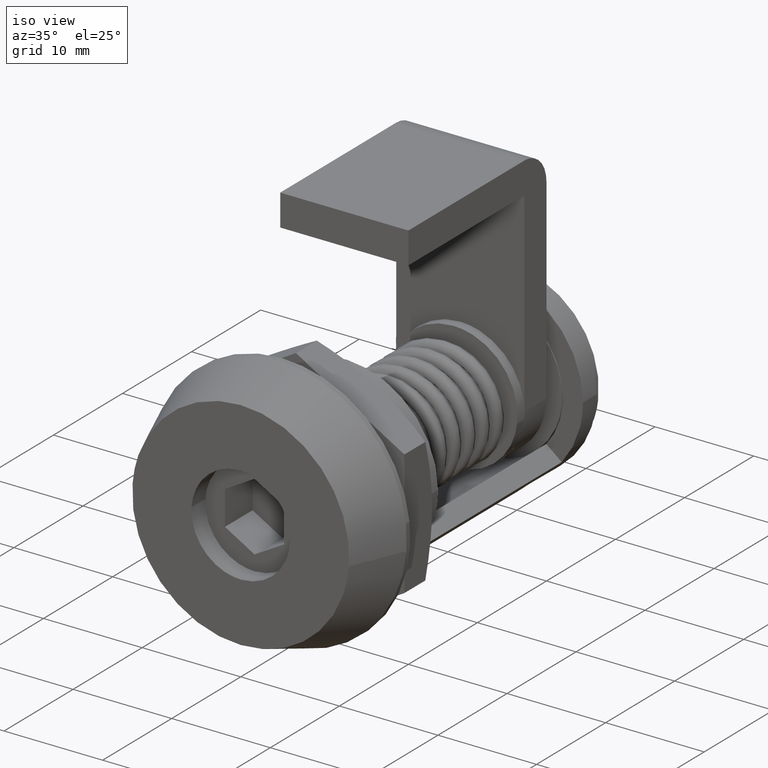
[diagram: clean part render]
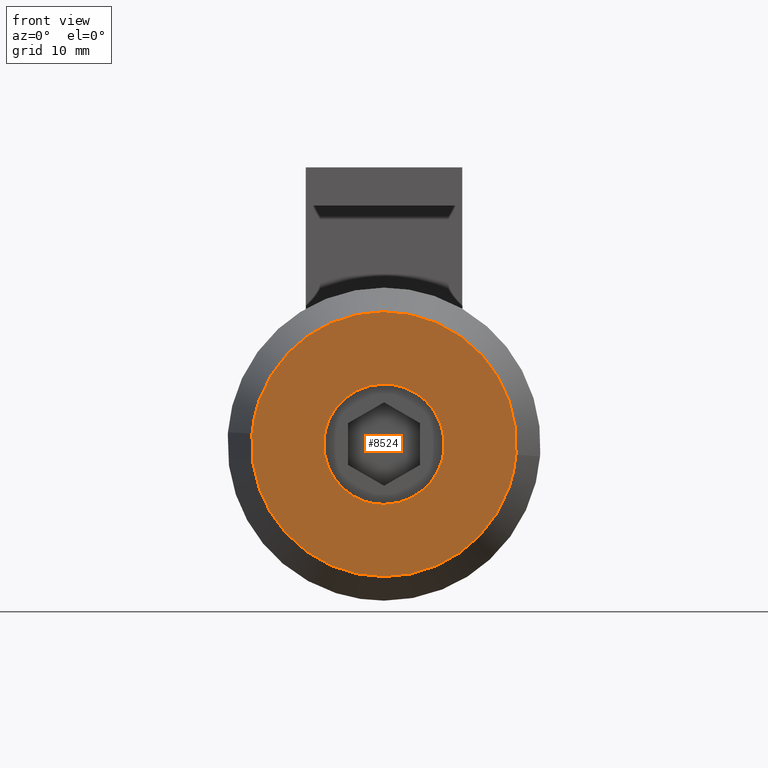
[diagram: tour spotlight — one face highlighted and labeled with its STEP entity id]
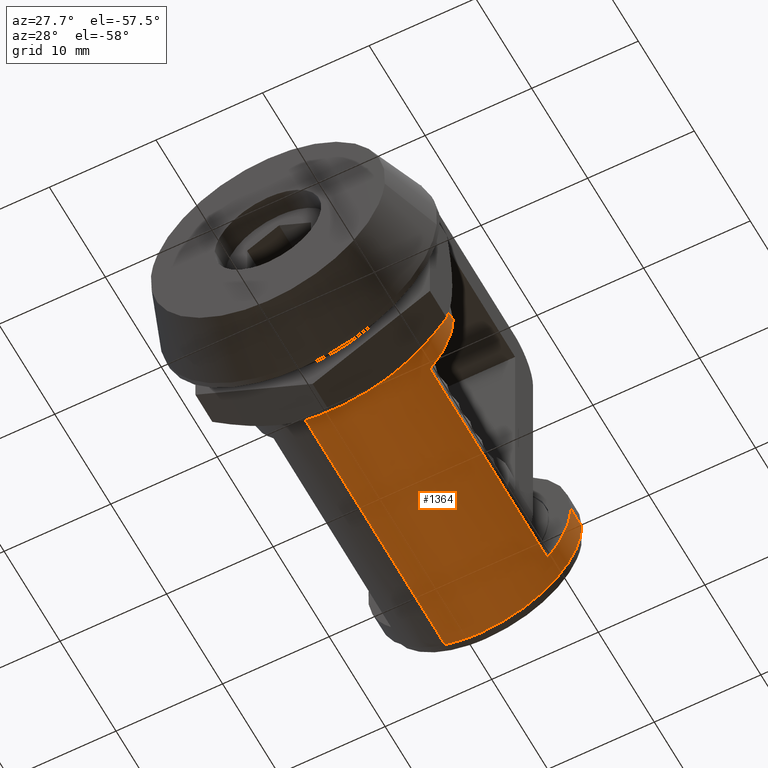
[diagram: tour spotlight — one face highlighted and labeled with its STEP entity id]
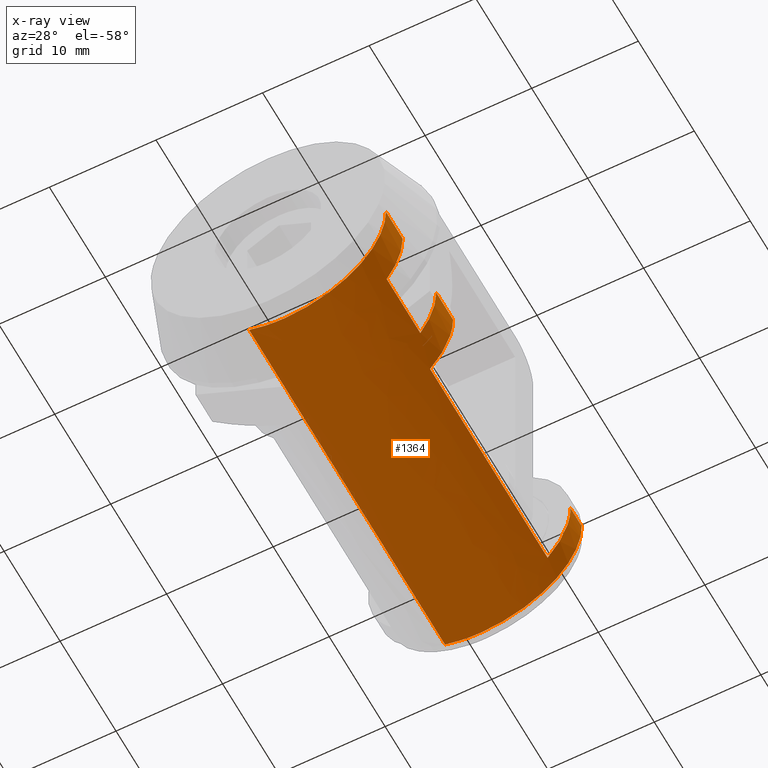
[diagram: x-ray of the same camera — body ghosted, this tour face saturated]
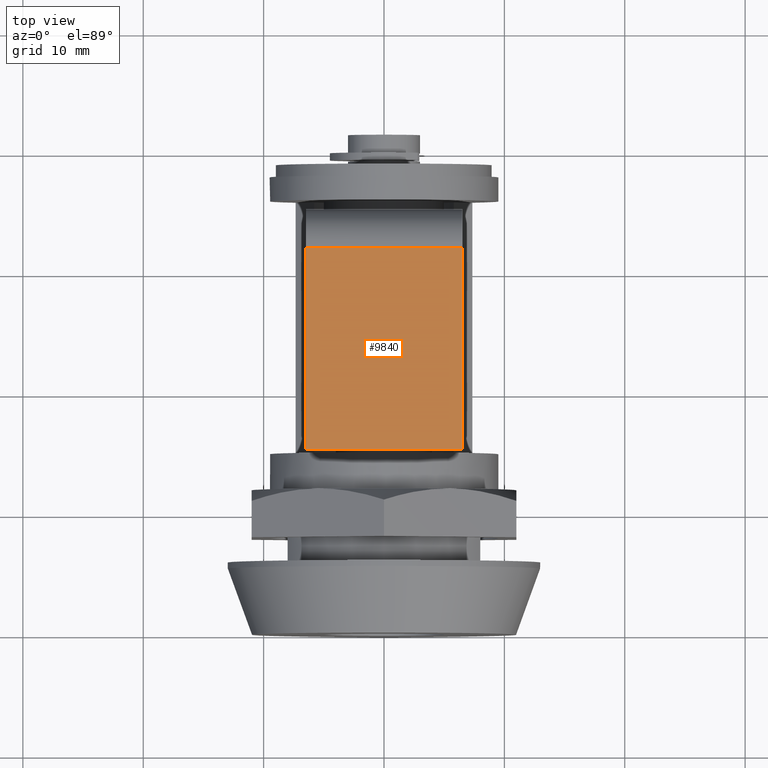
[diagram: tour spotlight — one face highlighted and labeled with its STEP entity id]
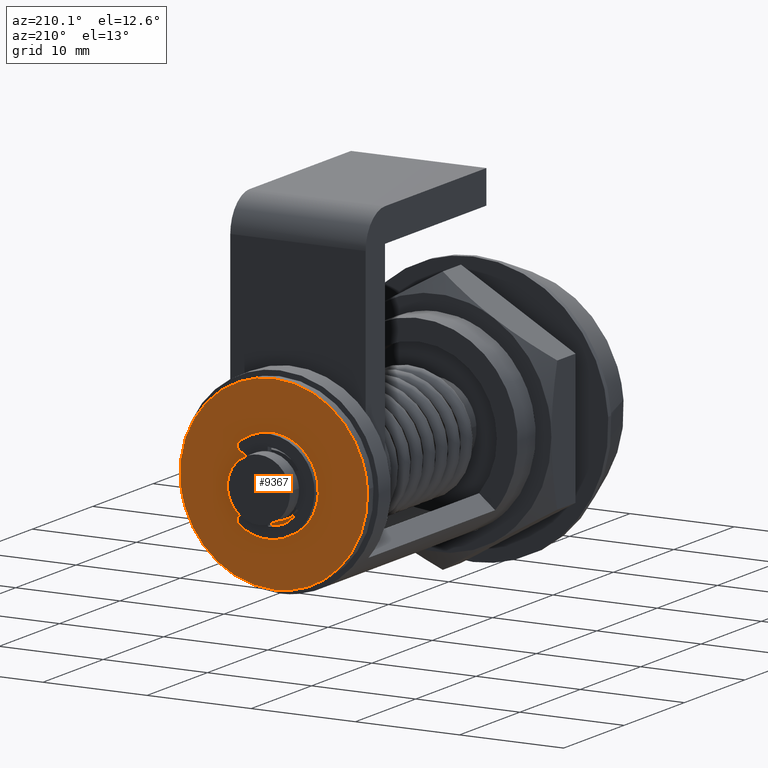
[diagram: tour spotlight — one face highlighted and labeled with its STEP entity id]
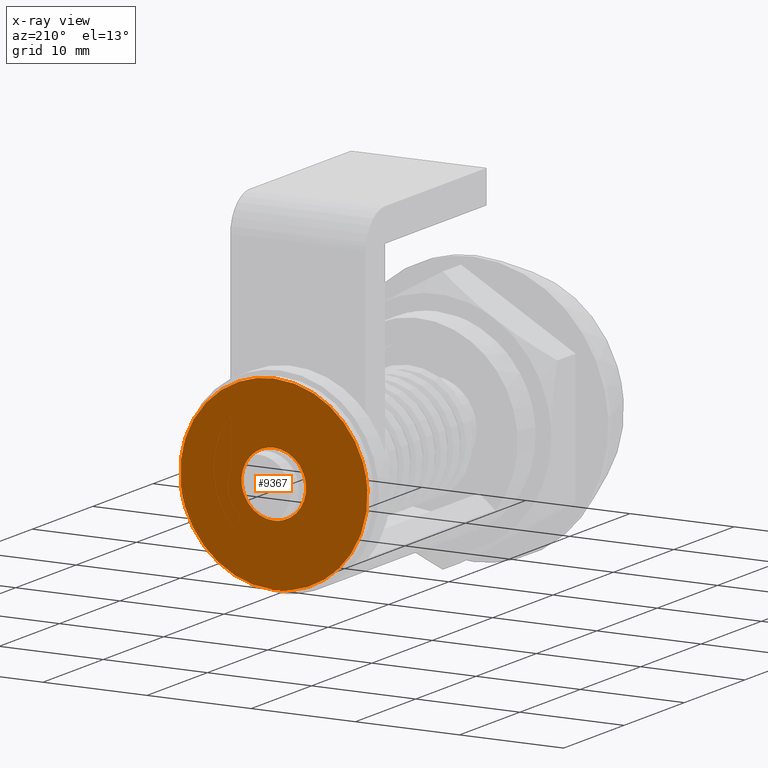
[diagram: x-ray of the same camera — body ghosted, this tour face saturated]
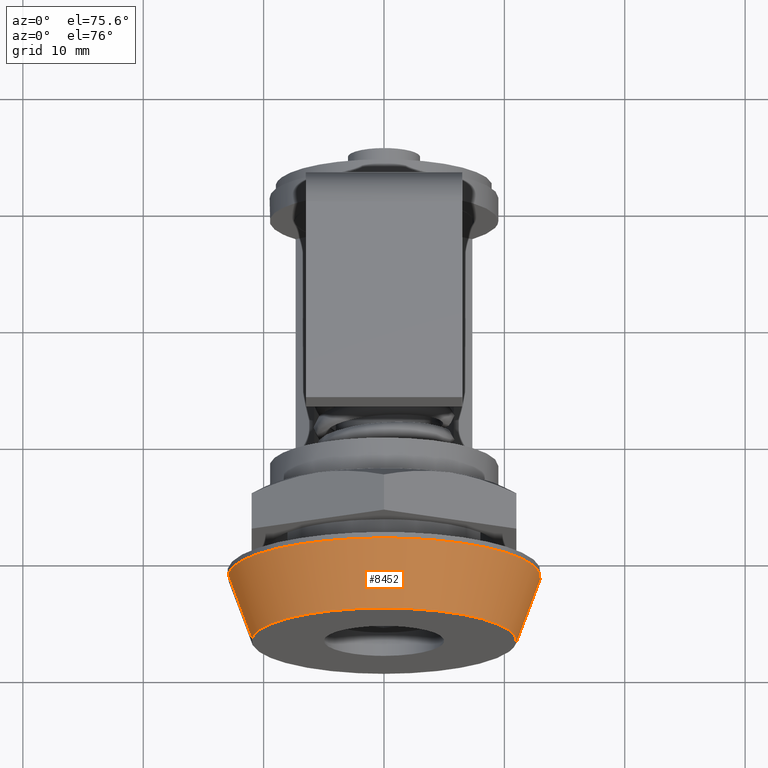
[diagram: tour spotlight — one face highlighted and labeled with its STEP entity id]
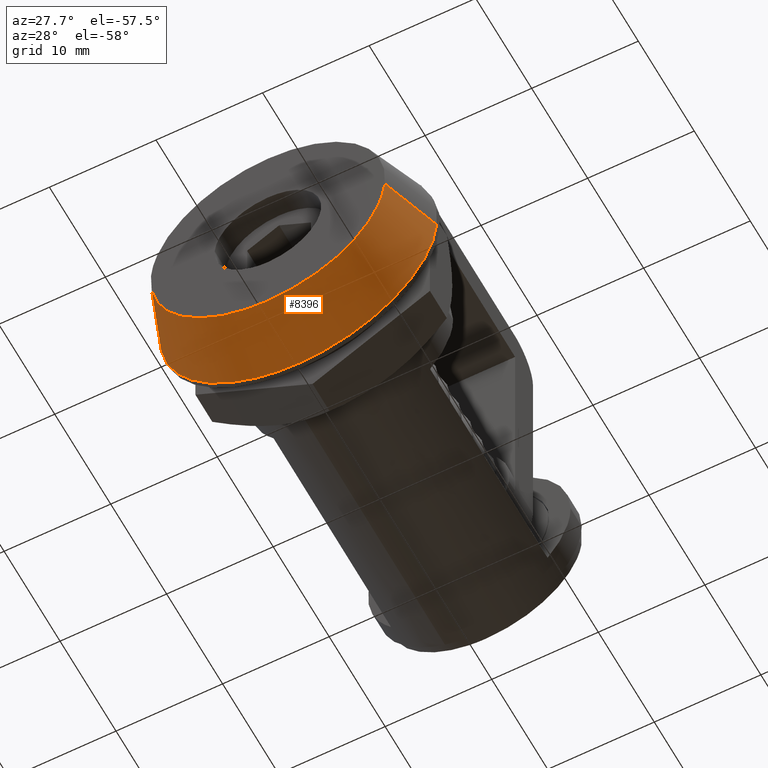
[diagram: tour spotlight — one face highlighted and labeled with its STEP entity id]
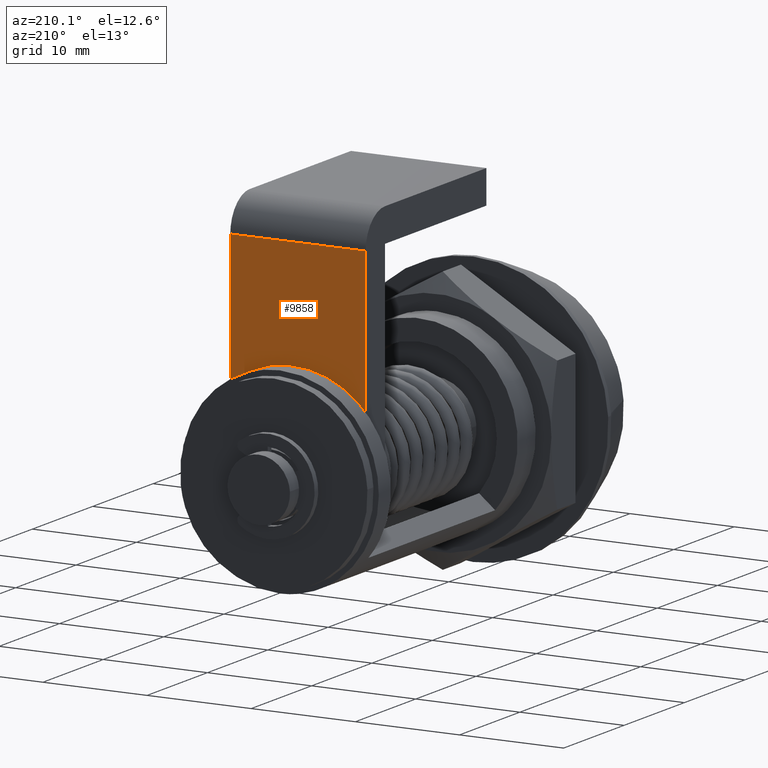
[diagram: tour spotlight — one face highlighted and labeled with its STEP entity id]
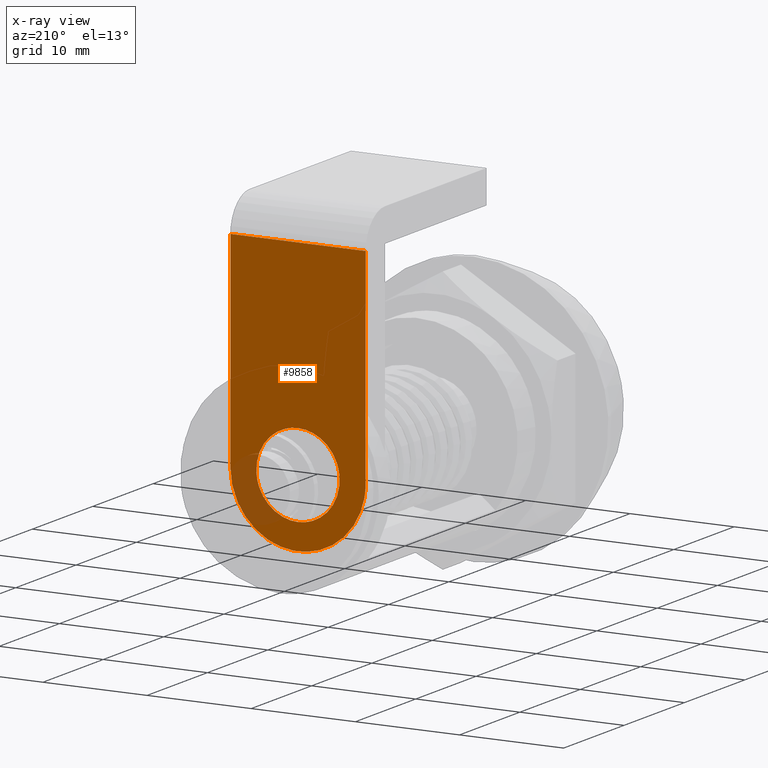
[diagram: x-ray of the same camera — body ghosted, this tour face saturated]
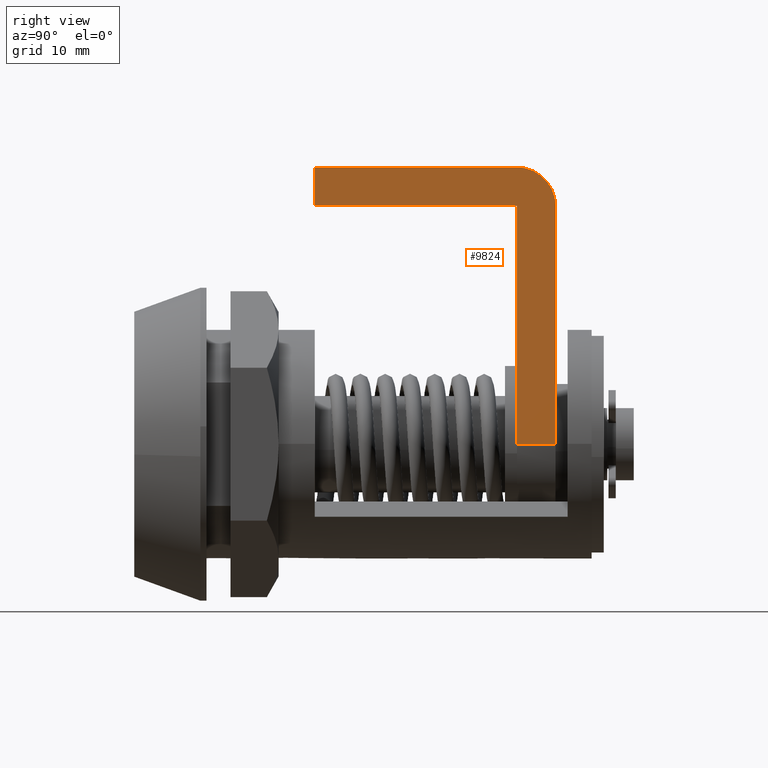
[diagram: tour spotlight — one face highlighted and labeled with its STEP entity id]
A machine part: a face-by-face anatomy tour. The part has 138 B-rep faces; the first image is the clean iso view, then the 8 largest visible faces are spotlighted one at a time (largest first), each with its STEP entity span.

Face 1 — front view, entity #8524. In plain terms, the highlighted face is a freeform B-spline surface patch.
Definition (entity closure, byte-faithful):
#8184=CARTESIAN_POINT('',(4.965047631814872,1.064786E-017,-0.590171173312899));
#8185=VERTEX_POINT('',#8184);
#8191=CARTESIAN_POINT('',(0.0,0.0,5.0));
#8192=VERTEX_POINT('',#8191);
#8193=CARTESIAN_POINT('',(4.965047631814872,1.064786E-017,-0.590171173312899));
#8194=CARTESIAN_POINT('',(5.000000000000001,0.0,-0.296120598288965));
#8195=CARTESIAN_POINT('',(5.0,0.0,-2.821493E-016));
#8196=CARTESIAN_POINT('',(5.000000000000001,0.0,5.000000000000001));
#8197=CARTESIAN_POINT('',(0.0,0.0,5.0));
#8205=(BOUNDED_CURVE()B_SPLINE_CURVE(2,(#8193,#8194,#8195,#8196,#8197),.UNSPECIFIED.,.F.,.U.)B_SPLINE_CURVE_WITH_KNOTS((3,2,3),(0.229562473513663,0.250000000000000,0.500000000000000),.UNSPECIFIED.)CURVE()GEOMETRIC_REPRESENTATION_ITEM()RATIONAL_B_SPLINE_CURVE((0.956026754184002,0.976055948331326,1.0,0.707106781186548,1.0))REPRESENTATION_ITEM(''));
#8206=EDGE_CURVE('',#8185,#8192,#8205,.T.);
#8208=CARTESIAN_POINT('',(-4.990674043895892,1.283695E-016,0.305241850969208));
#8209=VERTEX_POINT('',#8208);
#8210=CARTESIAN_POINT('',(0.0,0.0,5.0));
#8211=CARTESIAN_POINT('',(-4.703531933489114,0.0,4.999999999999999));
#8212=CARTESIAN_POINT('',(-4.990674043895892,1.283695E-016,0.305241850969208));
#8220=(BOUNDED_CURVE()B_SPLINE_CURVE(2,(#8210,#8211,#8212),.UNSPECIFIED.,.F.,.U.)B_SPLINE_CURVE_WITH_KNOTS((3,3),(0.500000000000000,0.739333020789672),.UNSPECIFIED.)CURVE()GEOMETRIC_REPRESENTATION_ITEM()RATIONAL_B_SPLINE_CURVE((1.0,0.719603924690265,0.976072167152107))REPRESENTATION_ITEM(''));
#8221=EDGE_CURVE('',#8192,#8209,#8220,.T.);
#8295=CARTESIAN_POINT('',(0.0,0.0,-5.0));
#8296=VERTEX_POINT('',#8295);
#8297=CARTESIAN_POINT('',(-4.990674043895892,1.283695E-016,0.305241850969208));
#8298=CARTESIAN_POINT('',(-5.000000000000001,0.0,0.152762967413802));
#8299=CARTESIAN_POINT('',(-5.0,0.0,-2.821493E-016));
#8300=CARTESIAN_POINT('',(-5.000000000000001,0.0,-5.000000000000001));
#8301=CARTESIAN_POINT('',(0.0,0.0,-5.0));
#8309=(BOUNDED_CURVE()B_SPLINE_CURVE(2,(#8297,#8298,#8299,#8300,#8301),.UNSPECIFIED.,.F.,.U.)B_SPLINE_CURVE_WITH_KNOTS((3,2,3),(0.739333020789672,0.750000000000000,1.0),.UNSPECIFIED.)CURVE()GEOMETRIC_REPRESENTATION_ITEM()RATIONAL_B_SPLINE_CURVE((0.976072167152108,0.987502856496283,1.0,0.707106781186548,1.0))REPRESENTATION_ITEM(''));
#8310=EDGE_CURVE('',#8209,#8296,#8309,.T.);
#8312=CARTESIAN_POINT('',(0.0,0.0,-5.0));
#8313=CARTESIAN_POINT('',(4.440872629704403,0.0,-5.000000000000001));
#8314=CARTESIAN_POINT('',(4.965047631814872,1.064786E-017,-0.590171173312899));
#8322=(BOUNDED_CURVE()B_SPLINE_CURVE(2,(#8312,#8313,#8314),.UNSPECIFIED.,.F.,.U.)B_SPLINE_CURVE_WITH_KNOTS((3,3),(0.0,0.229562473513663),.UNSPECIFIED.)CURVE()GEOMETRIC_REPRESENTATION_ITEM()RATIONAL_B_SPLINE_CURVE((1.0,0.731050832855222,0.956026754184002))REPRESENTATION_ITEM(''));
#8323=EDGE_CURVE('',#8296,#8185,#8322,.T.);
#8347=CARTESIAN_POINT('',(0.0,0.0,-11.0));
#8348=VERTEX_POINT('',#8347);
#8349=CARTESIAN_POINT('',(10.966090671064149,4.024156E-012,-0.863050053028149));
#8350=VERTEX_POINT('',#8349);
#8351=CARTESIAN_POINT('',(0.0,0.0,-11.0));
#8352=CARTESIAN_POINT('',(10.168295408199839,0.0,-11.0));
#8353=CARTESIAN_POINT('',(10.966090671064151,4.024156E-012,-0.863050053028149));
#8361=(BOUNDED_CURVE()B_SPLINE_CURVE(2,(#8351,#8352,#8353),.UNSPECIFIED.,.F.,.U.)B_SPLINE_CURVE_WITH_KNOTS((3,3),(0.0,0.236331300632087),.UNSPECIFIED.)CURVE()GEOMETRIC_REPRESENTATION_ITEM()RATIONAL_B_SPLINE_CURVE((1.0,0.723120658605993,0.969723356170397))REPRESENTATION_ITEM(''));
#8362=EDGE_CURVE('',#8348,#8350,#8361,.T.);
#8364=CARTESIAN_POINT('',(-10.966090671064149,4.024156E-012,0.863050053028146));
#8365=VERTEX_POINT('',#8364);
#8366=CARTESIAN_POINT('',(-10.966090671064157,4.024156E-012,0.863050053028146));
#8367=CARTESIAN_POINT('',(-10.999999999999996,0.0,0.432191177106200));
#8368=CARTESIAN_POINT('',(-11.0,0.0,-2.821493E-016));
#8369=CARTESIAN_POINT('',(-11.0,0.0,-11.0));
#8370=CARTESIAN_POINT('',(0.0,0.0,-11.0));
#8378=(BOUNDED_CURVE()B_SPLINE_CURVE(2,(#8366,#8367,#8368,#8369,#8370),.UNSPECIFIED.,.F.,.U.)B_SPLINE_CURVE_WITH_KNOTS((3,2,3),(0.736331300632087,0.750000000000000,1.0),.UNSPECIFIED.)CURVE()GEOMETRIC_REPRESENTATION_ITEM()RATIONAL_B_SPLINE_CURVE((0.969723356170398,0.983986122580555,1.0,0.707106781186548,1.0))REPRESENTATION_ITEM(''));
#8379=EDGE_CURVE('',#8365,#8348,#8378,.T.);
#8415=CARTESIAN_POINT('',(0.0,0.0,11.0));
#8416=VERTEX_POINT('',#8415);
#8417=CARTESIAN_POINT('',(10.966090671064160,4.024156E-012,-0.863050053028149));
#8418=CARTESIAN_POINT('',(10.999999999999998,0.0,-0.432191177106203));
#8419=CARTESIAN_POINT('',(11.0,0.0,-2.821493E-016));
#8420=CARTESIAN_POINT('',(11.0,0.0,11.0));
#8421=CARTESIAN_POINT('',(0.0,0.0,11.0));
#8429=(BOUNDED_CURVE()B_SPLINE_CURVE(2,(#8417,#8418,#8419,#8420,#8421),.UNSPECIFIED.,.F.,.U.)B_SPLINE_CURVE_WITH_KNOTS((3,2,3),(0.236331300632087,0.250000000000000,0.500000000000000),.UNSPECIFIED.)CURVE()GEOMETRIC_REPRESENTATION_ITEM()RATIONAL_B_SPLINE_CURVE((0.969723356170397,0.983986122580555,1.0,0.707106781186548,1.0))REPRESENTATION_ITEM(''));
#8430=EDGE_CURVE('',#8350,#8416,#8429,.T.);
#8437=CARTESIAN_POINT('',(0.0,0.0,11.0));
#8438=CARTESIAN_POINT('',(-10.168295408199802,0.0,11.0));
#8439=CARTESIAN_POINT('',(-10.966090671064153,4.024156E-012,0.863050053028146));
#8447=(BOUNDED_CURVE()B_SPLINE_CURVE(2,(#8437,#8438,#8439),.UNSPECIFIED.,.F.,.U.)B_SPLINE_CURVE_WITH_KNOTS((3,3),(0.500000000000000,0.736331300632087),.UNSPECIFIED.)CURVE()GEOMETRIC_REPRESENTATION_ITEM()RATIONAL_B_SPLINE_CURVE((1.0,0.723120658605994,0.969723356170396))REPRESENTATION_ITEM(''));
#8448=EDGE_CURVE('',#8416,#8365,#8447,.T.);
#8507=CARTESIAN_POINT('',(-12.095542279995369,0.0,-12.098899957359730));
#8508=CARTESIAN_POINT('',(-12.095542279995369,0.0,12.098900547445711));
#8509=CARTESIAN_POINT('',(12.095542870081360,0.0,-12.098899957359730));
#8510=CARTESIAN_POINT('',(12.095542870081360,0.0,12.098900547445711));
#8511=B_SPLINE_SURFACE_WITH_KNOTS('',1,1,((#8507,#8509),(#8508,#8510)),.UNSPECIFIED.,.F.,.F.,.U.,(2,2),(2,2),(0.0,24.197800504805439),(0.0,24.191085150076731),.UNSPECIFIED.);
#8512=ORIENTED_EDGE('',*,*,#8362,.T.);
#8513=ORIENTED_EDGE('',*,*,#8430,.T.);
#8514=ORIENTED_EDGE('',*,*,#8448,.T.);
#8515=ORIENTED_EDGE('',*,*,#8379,.T.);
#8516=EDGE_LOOP('',(#8512,#8513,#8514,#8515));
#8517=FACE_OUTER_BOUND('',#8516,.T.);
#8518=ORIENTED_EDGE('',*,*,#8221,.F.);
#8519=ORIENTED_EDGE('',*,*,#8206,.F.);
#8520=ORIENTED_EDGE('',*,*,#8323,.F.);
#8521=ORIENTED_EDGE('',*,*,#8310,.F.);
#8522=EDGE_LOOP('',(#8518,#8519,#8520,#8521));
#8523=FACE_BOUND('',#8522,.T.);
#8524=ADVANCED_FACE('',(#8517,#8523),#8511,.F.);

Face 2 — auxiliary view, entity #1364. An x-ray twin of the same camera follows (body ghosted, this face saturated) — the face is partly hidden behind the body. In plain terms, the highlighted face is a freeform B-spline surface patch.
Definition (entity closure, byte-faithful):
#567=CARTESIAN_POINT('',(-3.335122581036567,3.0,-8.895333460273189));
#568=VERTEX_POINT('',#567);
#584=CARTESIAN_POINT('',(0.0,3.0,-9.500000000000000));
#585=VERTEX_POINT('',#584);
#586=CARTESIAN_POINT('',(-3.335122581036567,3.000000000000000,-8.895333460273189));
#587=CARTESIAN_POINT('',(-1.722375111507071,3.0,-9.499999999999998));
#588=CARTESIAN_POINT('',(0.0,3.0,-9.500000000000000));
#596=(BOUNDED_CURVE()B_SPLINE_CURVE(2,(#586,#587,#588),.UNSPECIFIED.,.F.,.U.)B_SPLINE_CURVE_WITH_KNOTS((3,3),(0.940377376343434,1.0),.UNSPECIFIED.)CURVE()GEOMETRIC_REPRESENTATION_ITEM()RATIONAL_B_SPLINE_CURVE((0.893613697396860,0.930147751372501,1.0))REPRESENTATION_ITEM(''));
#597=EDGE_CURVE('',#568,#585,#596,.T.);
#599=CARTESIAN_POINT('',(9.499972911463162,3.0,0.022686589112294));
#600=VERTEX_POINT('',#599);
#601=CARTESIAN_POINT('',(0.0,3.0,-9.500000000000000));
#602=CARTESIAN_POINT('',(9.500000000000000,3.0,-9.500000000000000));
#603=CARTESIAN_POINT('',(9.500000000000000,3.0,-2.821493E-016));
#604=CARTESIAN_POINT('',(9.500000000000000,3.000000000000000,0.011343310728451));
#605=CARTESIAN_POINT('',(9.499972911463162,3.000000000000000,0.022686589112294));
#613=(BOUNDED_CURVE()B_SPLINE_CURVE(2,(#601,#602,#603,#604,#605),.UNSPECIFIED.,.F.,.U.)B_SPLINE_CURVE_WITH_KNOTS((3,2,3),(0.0,0.250000000000000,0.250421945624700),.UNSPECIFIED.)CURVE()GEOMETRIC_REPRESENTATION_ITEM()RATIONAL_B_SPLINE_CURVE((1.0,0.707106781186548,1.0,0.999505659951269,0.999012988579503))REPRESENTATION_ITEM(''));
#614=EDGE_CURVE('',#585,#600,#613,.T.);
#1210=CARTESIAN_POINT('',(-3.335124496469923,38.875000000000014,-8.895332742120790));
#1211=CARTESIAN_POINT('',(-1.711397609098610,38.875000000000007,-9.504116187849188));
#1212=CARTESIAN_POINT('',(0.022698444063289,38.875000000000007,-9.499972883152720));
#1213=CARTESIAN_POINT('',(9.522671327216010,38.875000000000007,-9.477274439089433));
#1214=CARTESIAN_POINT('',(9.499972883152720,38.875000000000007,0.022698444063288));
#1215=CARTESIAN_POINT('',(-3.335124496469923,2.103125000000000,-8.895332742120790));
#1216=CARTESIAN_POINT('',(-1.711397609098610,2.103125000000000,-9.504116187849188));
#1217=CARTESIAN_POINT('',(0.022698444063289,2.103124999999999,-9.499972883152720));
#1218=CARTESIAN_POINT('',(9.522671327216010,2.103124999999999,-9.477274439089433));
#1219=CARTESIAN_POINT('',(9.499972883152720,2.103124999999999,0.022698444063288));
#1227=(BOUNDED_SURFACE()B_SPLINE_SURFACE(2,1,((#1210,#1215),(#1211,#1216),(#1212,#1217),(#1213,#1218),(#1214,#1219)),.UNSPECIFIED.,.F.,.F.,.U.)B_SPLINE_SURFACE_WITH_KNOTS((3,2,3),(2,2),(0.0,3.777627688842630,19.517743059020230),(0.0,36.771875000000023),.UNSPECIFIED.)GEOMETRIC_REPRESENTATION_ITEM()RATIONAL_B_SPLINE_SURFACE(((0.893152553776852,0.893152553776852),(0.929705627484771,0.929705627484771),(1.0,1.0),(0.707106781186548,0.707106781186548),(1.0,1.0)))REPRESENTATION_ITEM('')SURFACE());
#1228=CARTESIAN_POINT('',(-3.335122557695712,38.0,-8.895333469024356));
#1229=VERTEX_POINT('',#1228);
#1230=CARTESIAN_POINT('',(0.0,38.0,-9.500000000000000));
#1231=VERTEX_POINT('',#1230);
#1232=CARTESIAN_POINT('',(-3.335122557695712,38.0,-8.895333469024356));
#1233=CARTESIAN_POINT('',(-1.722375098633648,38.0,-9.499999999999998));
#1234=CARTESIAN_POINT('',(0.0,38.0,-9.500000000000000));
#1242=(BOUNDED_CURVE()B_SPLINE_CURVE(2,(#1232,#1233,#1234),.UNSPECIFIED.,.F.,.U.)B_SPLINE_CURVE_WITH_KNOTS((3,3),(0.940377376757939,1.0),.UNSPECIFIED.)CURVE()GEOMETRIC_REPRESENTATION_ITEM()RATIONAL_B_SPLINE_CURVE((0.893613697904840,0.930147751858124,1.0))REPRESENTATION_ITEM(''));
#1243=EDGE_CURVE('',#1229,#1231,#1242,.T.);
#1244=ORIENTED_EDGE('',*,*,#1243,.T.);
#1245=CARTESIAN_POINT('',(9.499972911471502,38.0,0.022686585617442));
#1246=VERTEX_POINT('',#1245);
#1247=CARTESIAN_POINT('',(0.0,38.0,-9.500000000000000));
#1248=CARTESIAN_POINT('',(9.500000000000000,38.0,-9.500000000000000));
#1249=CARTESIAN_POINT('',(9.500000000000000,38.0,-2.821493E-016));
#1250=CARTESIAN_POINT('',(9.500000000000000,38.000000000000007,0.011343308981017));
#1251=CARTESIAN_POINT('',(9.499972911471502,37.999999999999993,0.022686585617442));
#1259=(BOUNDED_CURVE()B_SPLINE_CURVE(2,(#1247,#1248,#1249,#1250,#1251),.UNSPECIFIED.,.F.,.U.)B_SPLINE_CURVE_WITH_KNOTS((3,2,3),(0.0,0.250000000000000,0.250421945559732),.UNSPECIFIED.)CURVE()GEOMETRIC_REPRESENTATION_ITEM()RATIONAL_B_SPLINE_CURVE((1.0,0.707106781186548,1.0,0.999505660027384,0.999012988731220))REPRESENTATION_ITEM(''));
#1260=EDGE_CURVE('',#1231,#1246,#1259,.T.);
#1261=ORIENTED_EDGE('',*,*,#1260,.T.);
#1262=CARTESIAN_POINT('',(9.499972899413333,35.999999999999993,0.022691636473553));
#1263=VERTEX_POINT('',#1262);
#1264=CARTESIAN_POINT('',(9.499972911471502,38.0,0.022686585617442));
#1265=CARTESIAN_POINT('',(9.499972899413333,35.999999999999993,0.022691636473553));
#1266=QUASI_UNIFORM_CURVE('',1,(#1264,#1265),.UNSPECIFIED.,.F.,.U.);
#1267=EDGE_CURVE('',#1246,#1263,#1266,.T.);
#1268=ORIENTED_EDGE('',*,*,#1267,.T.);
#1269=CARTESIAN_POINT('',(7.342762986025960,36.0,-6.027755115384750));
#1270=VERTEX_POINT('',#1269);
#1271=CARTESIAN_POINT('',(7.342762986025965,36.0,-6.027755115384753));
#1272=CARTESIAN_POINT('',(9.508124457400749,35.999999999999993,-3.390000966614460));
#1273=CARTESIAN_POINT('',(9.499972899413333,35.999999999999986,0.022691636473553));
#1281=(BOUNDED_CURVE()B_SPLINE_CURVE(2,(#1271,#1272,#1273),.UNSPECIFIED.,.F.,.U.)B_SPLINE_CURVE_WITH_KNOTS((3,3),(0.0,0.153384382428661),.UNSPECIFIED.)CURVE()GEOMETRIC_REPRESENTATION_ITEM()RATIONAL_B_SPLINE_CURVE((1.0,0.875681553523498,0.865774155870729))REPRESENTATION_ITEM(''));
#1282=EDGE_CURVE('',#1270,#1263,#1281,.T.);
#1283=ORIENTED_EDGE('',*,*,#1282,.F.);
#1284=CARTESIAN_POINT('',(7.342762986025960,15.0,-6.027755115384750));
#1285=VERTEX_POINT('',#1284);
#1286=CARTESIAN_POINT('',(7.342762986025960,36.0,-6.027755115384750));
#1287=CARTESIAN_POINT('',(7.342762986025960,15.0,-6.027755115384750));
#1288=QUASI_UNIFORM_CURVE('',1,(#1286,#1287),.UNSPECIFIED.,.F.,.U.);
#1289=EDGE_CURVE('',#1270,#1285,#1288,.T.);
#1290=ORIENTED_EDGE('',*,*,#1289,.T.);
#1291=CARTESIAN_POINT('',(9.499972887300419,14.999999999999989,0.022696707996243));
#1292=VERTEX_POINT('',#1291);
#1293=CARTESIAN_POINT('',(7.342762986025965,15.0,-6.027755115384753));
#1294=CARTESIAN_POINT('',(9.508126273977986,14.999999999999996,-3.389998753734901));
#1295=CARTESIAN_POINT('',(9.499972887300419,14.999999999999980,0.022696707996243));
#1303=(BOUNDED_CURVE()B_SPLINE_CURVE(2,(#1293,#1294,#1295),.UNSPECIFIED.,.F.,.U.)B_SPLINE_CURVE_WITH_KNOTS((3,3),(0.0,0.153384495109679),.UNSPECIFIED.)CURVE()GEOMETRIC_REPRESENTATION_ITEM()RATIONAL_B_SPLINE_CURVE((1.0,0.875681462195236,0.865774141314215))REPRESENTATION_ITEM(''));
#1304=EDGE_CURVE('',#1285,#1292,#1303,.T.);
#1305=ORIENTED_EDGE('',*,*,#1304,.T.);
#1306=CARTESIAN_POINT('',(9.499972883010614,12.0,0.022698503533865));
#1307=VERTEX_POINT('',#1306);
#1308=CARTESIAN_POINT('',(9.499972887300419,14.999999999999989,0.022696707996243));
#1309=CARTESIAN_POINT('',(9.499972883010614,12.0,0.022698503533865));
#1310=QUASI_UNIFORM_CURVE('',1,(#1308,#1309),.UNSPECIFIED.,.F.,.U.);
#1311=EDGE_CURVE('',#1292,#1307,#1310,.T.);
#1312=ORIENTED_EDGE('',*,*,#1311,.T.);
#1313=CARTESIAN_POINT('',(8.0,12.0,-5.123475382979660));
#1314=VERTEX_POINT('',#1313);
#1315=CARTESIAN_POINT('',(8.0,12.0,-5.123475382979660));
#1316=CARTESIAN_POINT('',(9.506647793414169,12.000000000000002,-2.770935076578645));
#1317=CARTESIAN_POINT('',(9.499972883010614,12.000000000000002,0.022698503533865));
#1325=(BOUNDED_CURVE()B_SPLINE_CURVE(2,(#1315,#1316,#1317),.UNSPECIFIED.,.F.,.U.)B_SPLINE_CURVE_WITH_KNOTS((3,3),(0.0,0.502040275346693),.UNSPECIFIED.)CURVE()GEOMETRIC_REPRESENTATION_ITEM()RATIONAL_B_SPLINE_CURVE((1.0,0.920730482839999,0.921053946123211))REPRESENTATION_ITEM(''));
#1326=EDGE_CURVE('',#1314,#1307,#1325,.T.);
#1327=ORIENTED_EDGE('',*,*,#1326,.F.);
#1328=CARTESIAN_POINT('',(8.000000000000091,6.0,-5.123475382979640));
#1329=VERTEX_POINT('',#1328);
#1330=CARTESIAN_POINT('',(8.000000000000091,6.0,-5.123475382979640));
#1331=CARTESIAN_POINT('',(8.0,12.0,-5.123475382979660));
#1332=QUASI_UNIFORM_CURVE('',1,(#1330,#1331),.UNSPECIFIED.,.F.,.U.);
#1333=EDGE_CURVE('',#1329,#1314,#1332,.T.);
#1334=ORIENTED_EDGE('',*,*,#1333,.F.);
#1335=CARTESIAN_POINT('',(9.499972883060018,6.000000000000003,0.022698482862789));
#1336=VERTEX_POINT('',#1335);
#1337=CARTESIAN_POINT('',(9.499972883060018,6.000000000000003,0.022698482862789));
#1338=CARTESIAN_POINT('',(9.506647781301938,6.0,-2.770935095491211));
#1339=CARTESIAN_POINT('',(8.000000000000098,6.0,-5.123475382979647));
#1347=(BOUNDED_CURVE()B_SPLINE_CURVE(2,(#1337,#1338,#1339),.UNSPECIFIED.,.F.,.U.)B_SPLINE_CURVE_WITH_KNOTS((3,3),(0.497959728369384,1.0),.UNSPECIFIED.)CURVE()GEOMETRIC_REPRESENTATION_ITEM()RATIONAL_B_SPLINE_CURVE((0.921053946118424,0.920730483426750,1.0))REPRESENTATION_ITEM(''));
#1348=EDGE_CURVE('',#1336,#1329,#1347,.T.);
#1349=ORIENTED_EDGE('',*,*,#1348,.F.);
#1350=CARTESIAN_POINT('',(9.499972883060018,6.000000000000003,0.022698482862789));
#1351=CARTESIAN_POINT('',(9.499972911463162,3.0,0.022686589112294));
#1352=QUASI_UNIFORM_CURVE('',1,(#1350,#1351),.UNSPECIFIED.,.F.,.U.);
#1353=EDGE_CURVE('',#1336,#600,#1352,.T.);
#1354=ORIENTED_EDGE('',*,*,#1353,.T.);
#1355=ORIENTED_EDGE('',*,*,#614,.F.);
#1356=ORIENTED_EDGE('',*,*,#597,.F.);
#1357=CARTESIAN_POINT('',(-3.335122557695712,38.0,-8.895333469024356));
#1358=CARTESIAN_POINT('',(-3.335122581036567,3.0,-8.895333460273189));
#1359=QUASI_UNIFORM_CURVE('',1,(#1357,#1358),.UNSPECIFIED.,.F.,.U.);
#1360=EDGE_CURVE('',#1229,#568,#1359,.T.);
#1361=ORIENTED_EDGE('',*,*,#1360,.F.);
#1362=EDGE_LOOP('',(#1244,#1261,#1268,#1283,#1290,#1305,#1312,#1327,#1334,#1349,#1354,#1355,#1356,#1361));
#1363=FACE_OUTER_BOUND('',#1362,.T.);
#1364=ADVANCED_FACE('',(#1363),#1227,.T.);

Face 3 — top view, entity #9840. In plain terms, the highlighted face is a freeform B-spline surface patch.
Definition (entity closure, byte-faithful):
#9629=CARTESIAN_POINT('',(6.500000000000000,31.800000000000001,23.0));
#9630=VERTEX_POINT('',#9629);
#9651=CARTESIAN_POINT('',(-6.500000000000000,31.800000000000001,23.0));
#9652=VERTEX_POINT('',#9651);
#9666=CARTESIAN_POINT('',(6.500000000000000,31.800000000000001,23.0));
#9667=CARTESIAN_POINT('',(-6.500000000000000,31.800000000000001,23.0));
#9668=QUASI_UNIFORM_CURVE('',1,(#9666,#9667),.UNSPECIFIED.,.F.,.U.);
#9669=EDGE_CURVE('',#9630,#9652,#9668,.T.);
#9748=CARTESIAN_POINT('',(-6.500000000000000,15.0,23.0));
#9749=VERTEX_POINT('',#9748);
#9750=CARTESIAN_POINT('',(-6.500000000000000,31.800000000000001,23.0));
#9751=CARTESIAN_POINT('',(-6.500000000000000,15.0,23.0));
#9752=QUASI_UNIFORM_CURVE('',1,(#9750,#9751),.UNSPECIFIED.,.F.,.U.);
#9753=EDGE_CURVE('',#9652,#9749,#9752,.T.);
#9795=CARTESIAN_POINT('',(6.500000000000000,15.0,23.0));
#9796=VERTEX_POINT('',#9795);
#9797=CARTESIAN_POINT('',(6.500000000000000,31.800000000000001,23.0));
#9798=CARTESIAN_POINT('',(6.500000000000000,15.0,23.0));
#9799=QUASI_UNIFORM_CURVE('',1,(#9797,#9798),.UNSPECIFIED.,.F.,.U.);
#9800=EDGE_CURVE('',#9630,#9796,#9799,.T.);
#9825=CARTESIAN_POINT('',(-7.149349974803479,14.160840092583060,23.0));
#9826=CARTESIAN_POINT('',(-7.149349974803479,32.639159156398421,23.0));
#9827=CARTESIAN_POINT('',(7.149350323490651,14.160840092583060,23.0));
#9828=CARTESIAN_POINT('',(7.149350323490651,32.639159156398421,23.0));
#9829=B_SPLINE_SURFACE_WITH_KNOTS('',1,1,((#9825,#9827),(#9826,#9828)),.UNSPECIFIED.,.F.,.F.,.U.,(2,2),(2,2),(0.0,18.478319063815359),(0.0,14.298700298294129),.UNSPECIFIED.);
#9830=ORIENTED_EDGE('',*,*,#9800,.F.);
#9831=ORIENTED_EDGE('',*,*,#9669,.T.);
#9832=ORIENTED_EDGE('',*,*,#9753,.T.);
#9833=CARTESIAN_POINT('',(6.500000000000000,15.0,23.0));
#9834=CARTESIAN_POINT('',(-6.500000000000000,15.0,23.0));
#9835=QUASI_UNIFORM_CURVE('',1,(#9833,#9834),.UNSPECIFIED.,.F.,.U.);
#9836=EDGE_CURVE('',#9796,#9749,#9835,.T.);
#9837=ORIENTED_EDGE('',*,*,#9836,.F.);
#9838=EDGE_LOOP('',(#9830,#9831,#9832,#9837));
#9839=FACE_OUTER_BOUND('',#9838,.T.);
#9840=ADVANCED_FACE('',(#9839),#9829,.F.);

Face 4 — auxiliary view, entity #9367. An x-ray twin of the same camera follows (body ghosted, this face saturated) — the face is partly hidden behind the body. In plain terms, the highlighted face is a freeform B-spline surface patch.
Definition (entity closure, byte-faithful):
#8994=CARTESIAN_POINT('',(-3.094217875105962,39.0,0.189250472587898));
#8995=VERTEX_POINT('',#8994);
#9001=CARTESIAN_POINT('',(0.0,39.0,3.100000000000000));
#9002=VERTEX_POINT('',#9001);
#9003=CARTESIAN_POINT('',(0.0,39.0,3.100000000000000));
#9004=CARTESIAN_POINT('',(-2.916188807351313,39.0,3.100000000000000));
#9005=CARTESIAN_POINT('',(-3.094217875105962,39.0,0.189250472587898));
#9013=(BOUNDED_CURVE()B_SPLINE_CURVE(2,(#9003,#9004,#9005),.UNSPECIFIED.,.F.,.U.)B_SPLINE_CURVE_WITH_KNOTS((3,3),(0.500000000000000,0.739332962238641),.UNSPECIFIED.)CURVE()GEOMETRIC_REPRESENTATION_ITEM()RATIONAL_B_SPLINE_CURVE((1.0,0.719603993287064,0.976072041666070))REPRESENTATION_ITEM(''));
#9014=EDGE_CURVE('',#9002,#8995,#9013,.T.);
#9016=CARTESIAN_POINT('',(3.078330120942626,39.0,-0.365901170362211));
#9017=VERTEX_POINT('',#9016);
#9018=CARTESIAN_POINT('',(3.078330120942626,39.0,-0.365901170362211));
#9019=CARTESIAN_POINT('',(3.100000000000001,38.999999999999993,-0.183592266181875));
#9020=CARTESIAN_POINT('',(3.100000000000000,39.0,-2.821493E-016));
#9021=CARTESIAN_POINT('',(3.100000000000000,39.0,3.100000000000000));
#9022=CARTESIAN_POINT('',(0.0,39.0,3.100000000000000));
#9030=(BOUNDED_CURVE()B_SPLINE_CURVE(2,(#9018,#9019,#9020,#9021,#9022),.UNSPECIFIED.,.F.,.U.)B_SPLINE_CURVE_WITH_KNOTS((3,2,3),(0.229562745663781,0.250000000000000,0.500000000000000),.UNSPECIFIED.)CURVE()GEOMETRIC_REPRESENTATION_ITEM()RATIONAL_B_SPLINE_CURVE((0.956027287610066,0.976056267175023,1.0,0.707106781186547,1.0))REPRESENTATION_ITEM(''));
#9031=EDGE_CURVE('',#9017,#9002,#9030,.T.);
#9079=CARTESIAN_POINT('',(0.0,39.0,-3.100000000000001));
#9080=VERTEX_POINT('',#9079);
#9081=CARTESIAN_POINT('',(0.0,39.0,-3.100000000000001));
#9082=CARTESIAN_POINT('',(2.753345495404277,39.000000000000007,-3.100000000000001));
#9083=CARTESIAN_POINT('',(3.078330120942626,39.0,-0.365901170362211));
#9091=(BOUNDED_CURVE()B_SPLINE_CURVE(2,(#9081,#9082,#9083),.UNSPECIFIED.,.F.,.U.)B_SPLINE_CURVE_WITH_KNOTS((3,3),(0.0,0.229562745663781),.UNSPECIFIED.)CURVE()GEOMETRIC_REPRESENTATION_ITEM()RATIONAL_B_SPLINE_CURVE((1.0,0.731050514011525,0.956027287610066))REPRESENTATION_ITEM(''));
#9092=EDGE_CURVE('',#9080,#9017,#9091,.T.);
#9094=CARTESIAN_POINT('',(-3.094217875105962,39.000000000000007,0.189250472587898));
#9095=CARTESIAN_POINT('',(-3.100000000000000,38.999999999999993,0.094713566255551));
#9096=CARTESIAN_POINT('',(-3.100000000000000,39.0,-2.821493E-016));
#9097=CARTESIAN_POINT('',(-3.100000000000000,39.0,-3.100000000000000));
#9098=CARTESIAN_POINT('',(0.0,39.0,-3.100000000000001));
#9106=(BOUNDED_CURVE()B_SPLINE_CURVE(2,(#9094,#9095,#9096,#9097,#9098),.UNSPECIFIED.,.F.,.U.)B_SPLINE_CURVE_WITH_KNOTS((3,2,3),(0.739332962238640,0.750000000000000,1.0),.UNSPECIFIED.)CURVE()GEOMETRIC_REPRESENTATION_ITEM()RATIONAL_B_SPLINE_CURVE((0.976072041666069,0.987502787899483,1.0,0.707106781186547,1.0))REPRESENTATION_ITEM(''));
#9107=EDGE_CURVE('',#8995,#9080,#9106,.T.);
#9150=CARTESIAN_POINT('',(8.937087153868360,38.999999999999893,-1.062296194108341));
#9151=VERTEX_POINT('',#9150);
#9152=CARTESIAN_POINT('',(0.0,39.0,9.0));
#9153=VERTEX_POINT('',#9152);
#9154=CARTESIAN_POINT('',(8.937087153868360,38.999999999999886,-1.062296194108340));
#9155=CARTESIAN_POINT('',(9.0,39.0,-0.533011054970397));
#9156=CARTESIAN_POINT('',(9.0,39.0,-2.821493E-016));
#9157=CARTESIAN_POINT('',(9.0,39.0,9.0));
#9158=CARTESIAN_POINT('',(0.0,39.0,9.0));
#9166=(BOUNDED_CURVE()B_SPLINE_CURVE(2,(#9154,#9155,#9156,#9157,#9158),.UNSPECIFIED.,.F.,.U.)B_SPLINE_CURVE_WITH_KNOTS((3,2,3),(0.229562698885251,0.250000000000000,0.500000000000000),.UNSPECIFIED.)CURVE()GEOMETRIC_REPRESENTATION_ITEM()RATIONAL_B_SPLINE_CURVE((0.956027195922015,0.976056212370566,1.0,0.707106781186547,1.0))REPRESENTATION_ITEM(''));
#9167=EDGE_CURVE('',#9151,#9153,#9166,.T.);
#9169=CARTESIAN_POINT('',(-8.983213390137422,38.999999999999908,0.549433514853681));
#9170=VERTEX_POINT('',#9169);
#9171=CARTESIAN_POINT('',(0.0,39.0,9.0));
#9172=CARTESIAN_POINT('',(-8.466357756770128,38.999999999999993,9.0));
#9173=CARTESIAN_POINT('',(-8.983213390137422,38.999999999999915,0.549433514853681));
#9181=(BOUNDED_CURVE()B_SPLINE_CURVE(2,(#9171,#9172,#9173),.UNSPECIFIED.,.F.,.U.)B_SPLINE_CURVE_WITH_KNOTS((3,3),(0.500000000000000,0.739333026414102),.UNSPECIFIED.)CURVE()GEOMETRIC_REPRESENTATION_ITEM()RATIONAL_B_SPLINE_CURVE((1.0,0.719603918100835,0.976072179206338))REPRESENTATION_ITEM(''));
#9182=EDGE_CURVE('',#9153,#9170,#9181,.T.);
#9249=CARTESIAN_POINT('',(0.0,39.0,-9.0));
#9250=VERTEX_POINT('',#9249);
#9251=CARTESIAN_POINT('',(0.0,39.0,-9.0));
#9252=CARTESIAN_POINT('',(7.993581468211469,38.999999999999993,-9.000000000000002));
#9253=CARTESIAN_POINT('',(8.937087153868360,38.999999999999886,-1.062296194108340));
#9261=(BOUNDED_CURVE()B_SPLINE_CURVE(2,(#9251,#9252,#9253),.UNSPECIFIED.,.F.,.U.)B_SPLINE_CURVE_WITH_KNOTS((3,3),(0.0,0.229562698885251),.UNSPECIFIED.)CURVE()GEOMETRIC_REPRESENTATION_ITEM()RATIONAL_B_SPLINE_CURVE((1.0,0.731050568815981,0.956027195922015))REPRESENTATION_ITEM(''));
#9262=EDGE_CURVE('',#9250,#9151,#9261,.T.);
#9296=CARTESIAN_POINT('',(-8.983213390137422,38.999999999999915,0.549433514853681));
#9297=CARTESIAN_POINT('',(-9.0,39.0,0.274973194523469));
#9298=CARTESIAN_POINT('',(-9.0,39.0,-2.821493E-016));
#9299=CARTESIAN_POINT('',(-9.0,39.0,-9.0));
#9300=CARTESIAN_POINT('',(0.0,39.0,-9.0));
#9308=(BOUNDED_CURVE()B_SPLINE_CURVE(2,(#9296,#9297,#9298,#9299,#9300),.UNSPECIFIED.,.F.,.U.)B_SPLINE_CURVE_WITH_KNOTS((3,2,3),(0.739333026414102,0.750000000000000,1.0),.UNSPECIFIED.)CURVE()GEOMETRIC_REPRESENTATION_ITEM()RATIONAL_B_SPLINE_CURVE((0.976072179206338,0.987502863085713,1.0,0.707106781186547,1.0))REPRESENTATION_ITEM(''));
#9309=EDGE_CURVE('',#9170,#9250,#9308,.T.);
#9350=CARTESIAN_POINT('',(-9.898881420025514,39.0,-9.899099965112507));
#9351=CARTESIAN_POINT('',(-9.898881420025514,39.0,9.899100447910129));
#9352=CARTESIAN_POINT('',(9.898936298021962,39.0,-9.899099965112507));
#9353=CARTESIAN_POINT('',(9.898936298021962,39.0,9.899100447910129));
#9354=B_SPLINE_SURFACE_WITH_KNOTS('',1,1,((#9350,#9352),(#9351,#9353)),.UNSPECIFIED.,.F.,.F.,.U.,(2,2),(2,2),(0.0,19.798200413022631),(0.0,19.797817718047479),.UNSPECIFIED.);
#9355=ORIENTED_EDGE('',*,*,#9309,.F.);
#9356=ORIENTED_EDGE('',*,*,#9182,.F.);
#9357=ORIENTED_EDGE('',*,*,#9167,.F.);
#9358=ORIENTED_EDGE('',*,*,#9262,.F.);
#9359=EDGE_LOOP('',(#9355,#9356,#9357,#9358));
#9360=FACE_OUTER_BOUND('',#9359,.T.);
#9361=ORIENTED_EDGE('',*,*,#9014,.T.);
#9362=ORIENTED_EDGE('',*,*,#9107,.T.);
#9363=ORIENTED_EDGE('',*,*,#9092,.T.);
#9364=ORIENTED_EDGE('',*,*,#9031,.T.);
#9365=EDGE_LOOP('',(#9361,#9362,#9363,#9364));
#9366=FACE_BOUND('',#9365,.T.);
#9367=ADVANCED_FACE('',(#9360,#9366),#9354,.T.);

Face 5 — auxiliary view, entity #8452. In plain terms, the highlighted face is a freeform B-spline surface patch.
Definition (entity closure, byte-faithful):
#7573=CARTESIAN_POINT('',(12.915100289725190,5.500000000001005,1.483301893174141));
#7574=VERTEX_POINT('',#7573);
#7575=CARTESIAN_POINT('',(0.0,5.499999999999799,13.0));
#7576=VERTEX_POINT('',#7575);
#7577=CARTESIAN_POINT('',(12.915100289725190,5.500000000001005,1.483301893174141));
#7578=CARTESIAN_POINT('',(11.592405171473795,5.499999999999800,13.000000000000002));
#7579=CARTESIAN_POINT('',(0.0,5.499999999999799,13.0));
#7587=(BOUNDED_CURVE()B_SPLINE_CURVE(2,(#7577,#7578,#7579),.UNSPECIFIED.,.F.,.U.)B_SPLINE_CURVE_WITH_KNOTS((3,3),(0.269767667446688,0.500000000000000),.UNSPECIFIED.)CURVE()GEOMETRIC_REPRESENTATION_ITEM()RATIONAL_B_SPLINE_CURVE((0.957343910897235,0.730266044174125,1.0))REPRESENTATION_ITEM(''));
#7588=EDGE_CURVE('',#7574,#7576,#7587,.T.);
#7634=CARTESIAN_POINT('',(-12.959925338530439,5.500000000003288,1.019968244480928));
#7635=VERTEX_POINT('',#7634);
#7649=CARTESIAN_POINT('',(0.0,5.499999999999799,13.0));
#7650=CARTESIAN_POINT('',(-12.017076391521661,5.499999999999800,13.000000000000002));
#7651=CARTESIAN_POINT('',(-12.959925338530443,5.500000000003288,1.019968244480928));
#7659=(BOUNDED_CURVE()B_SPLINE_CURVE(2,(#7649,#7650,#7651),.UNSPECIFIED.,.F.,.U.)B_SPLINE_CURVE_WITH_KNOTS((3,3),(0.500000000000000,0.736331300632269),.UNSPECIFIED.)CURVE()GEOMETRIC_REPRESENTATION_ITEM()RATIONAL_B_SPLINE_CURVE((1.0,0.723120658605780,0.969723356170776))REPRESENTATION_ITEM(''));
#7660=EDGE_CURVE('',#7576,#7635,#7659,.T.);
#7687=CARTESIAN_POINT('',(12.959925338530439,5.500000000003286,-1.019968244480927));
#7688=VERTEX_POINT('',#7687);
#7689=CARTESIAN_POINT('',(12.959925338530450,5.500000000003287,-1.019968244480927));
#7690=CARTESIAN_POINT('',(13.0,5.499999999999799,-0.510771391118632));
#7691=CARTESIAN_POINT('',(13.0,5.499999999999799,-2.821493E-016));
#7692=CARTESIAN_POINT('',(13.0,5.499999999999798,0.744080647795542));
#7693=CARTESIAN_POINT('',(12.915100289725190,5.500000000001005,1.483301893174141));
#7701=(BOUNDED_CURVE()B_SPLINE_CURVE(2,(#7689,#7690,#7691,#7692,#7693),.UNSPECIFIED.,.F.,.U.)B_SPLINE_CURVE_WITH_KNOTS((3,2,3),(0.236331300632269,0.250000000000000,0.269767667446688),.UNSPECIFIED.)CURVE()GEOMETRIC_REPRESENTATION_ITEM()RATIONAL_B_SPLINE_CURVE((0.969723356170775,0.983986122580767,1.0,0.976840737012422,0.957343910897235))REPRESENTATION_ITEM(''));
#7702=EDGE_CURVE('',#7688,#7574,#7701,.T.);
#8349=CARTESIAN_POINT('',(10.966090671064149,4.024156E-012,-0.863050053028149));
#8350=VERTEX_POINT('',#8349);
#8364=CARTESIAN_POINT('',(-10.966090671064149,4.024156E-012,0.863050053028146));
#8365=VERTEX_POINT('',#8364);
#8381=CARTESIAN_POINT('',(-10.966090671064149,4.024156E-012,0.863050053028146));
#8382=CARTESIAN_POINT('',(-12.959925338530439,5.500000000003288,1.019968244480928));
#8383=QUASI_UNIFORM_CURVE('',1,(#8381,#8382),.UNSPECIFIED.,.F.,.U.);
#8384=EDGE_CURVE('',#8365,#7635,#8383,.T.);
#8389=CARTESIAN_POINT('',(10.966090671064149,4.024156E-012,-0.863050053028149));
#8390=CARTESIAN_POINT('',(12.959925338530439,5.500000000003286,-1.019968244480927));
#8391=QUASI_UNIFORM_CURVE('',1,(#8389,#8390),.UNSPECIFIED.,.F.,.U.);
#8392=EDGE_CURVE('',#8350,#7688,#8391,.T.);
#8397=CARTESIAN_POINT('',(-10.916244804377749,-0.137499999999995,0.859127098219908));
#8398=CARTESIAN_POINT('',(-10.057117706157838,-0.137499999999995,11.775371902597653));
#8399=CARTESIAN_POINT('',(0.859127098219909,-0.137499999999995,10.916244804377749));
#8400=CARTESIAN_POINT('',(11.775371902597653,-0.137499999999995,10.057117706157836));
#8401=CARTESIAN_POINT('',(10.916244804377749,-0.137499999999995,-0.859127098219909));
#8402=CARTESIAN_POINT('',(-13.011017351884480,5.640937499999795,1.023989273118044));
#8403=CARTESIAN_POINT('',(-11.987028078766437,5.640937499999795,14.035006625002525));
#8404=CARTESIAN_POINT('',(1.023989273118044,5.640937499999795,13.011017351884480));
#8405=CARTESIAN_POINT('',(14.035006625002525,5.640937499999795,11.987028078766437));
#8406=CARTESIAN_POINT('',(13.011017351884480,5.640937499999795,-1.023989273118044));
#8414=(BOUNDED_SURFACE()B_SPLINE_SURFACE(2,1,((#8397,#8402),(#8398,#8403),(#8399,#8404),(#8400,#8405),(#8401,#8406)),.UNSPECIFIED.,.F.,.F.,.U.)B_SPLINE_SURFACE_WITH_KNOTS((3,2,3),(2,2),(0.0,21.624019023687421,43.248038047374841),(0.0,6.148625171849708),.UNSPECIFIED.)GEOMETRIC_REPRESENTATION_ITEM()RATIONAL_B_SPLINE_SURFACE(((1.0,1.0),(0.707106781186548,0.707106781186548),(1.0,1.0),(0.707106781186548,0.707106781186548),(1.0,1.0)))REPRESENTATION_ITEM('')SURFACE());
#8415=CARTESIAN_POINT('',(0.0,0.0,11.0));
#8416=VERTEX_POINT('',#8415);
#8417=CARTESIAN_POINT('',(10.966090671064160,4.024156E-012,-0.863050053028149));
#8418=CARTESIAN_POINT('',(10.999999999999998,0.0,-0.432191177106203));
#8419=CARTESIAN_POINT('',(11.0,0.0,-2.821493E-016));
#8420=CARTESIAN_POINT('',(11.0,0.0,11.0));
#8421=CARTESIAN_POINT('',(0.0,0.0,11.0));
#8429=(BOUNDED_CURVE()B_SPLINE_CURVE(2,(#8417,#8418,#8419,#8420,#8421),.UNSPECIFIED.,.F.,.U.)B_SPLINE_CURVE_WITH_KNOTS((3,2,3),(0.236331300632087,0.250000000000000,0.500000000000000),.UNSPECIFIED.)CURVE()GEOMETRIC_REPRESENTATION_ITEM()RATIONAL_B_SPLINE_CURVE((0.969723356170397,0.983986122580555,1.0,0.707106781186548,1.0))REPRESENTATION_ITEM(''));
#8430=EDGE_CURVE('',#8350,#8416,#8429,.T.);
#8431=ORIENTED_EDGE('',*,*,#8430,.F.);
#8432=ORIENTED_EDGE('',*,*,#8392,.T.);
#8433=ORIENTED_EDGE('',*,*,#7702,.T.);
#8434=ORIENTED_EDGE('',*,*,#7588,.T.);
#8435=ORIENTED_EDGE('',*,*,#7660,.T.);
#8436=ORIENTED_EDGE('',*,*,#8384,.F.);
#8437=CARTESIAN_POINT('',(0.0,0.0,11.0));
#8438=CARTESIAN_POINT('',(-10.168295408199802,0.0,11.0));
#8439=CARTESIAN_POINT('',(-10.966090671064153,4.024156E-012,0.863050053028146));
#8447=(BOUNDED_CURVE()B_SPLINE_CURVE(2,(#8437,#8438,#8439),.UNSPECIFIED.,.F.,.U.)B_SPLINE_CURVE_WITH_KNOTS((3,3),(0.500000000000000,0.736331300632087),.UNSPECIFIED.)CURVE()GEOMETRIC_REPRESENTATION_ITEM()RATIONAL_B_SPLINE_CURVE((1.0,0.723120658605994,0.969723356170396))REPRESENTATION_ITEM(''));
#8448=EDGE_CURVE('',#8416,#8365,#8447,.T.);
#8449=ORIENTED_EDGE('',*,*,#8448,.F.);
#8450=EDGE_LOOP('',(#8431,#8432,#8433,#8434,#8435,#8436,#8449));
#8451=FACE_OUTER_BOUND('',#8450,.T.);
#8452=ADVANCED_FACE('',(#8451),#8414,.T.);

Face 6 — auxiliary view, entity #8396. In plain terms, the highlighted face is a freeform B-spline surface patch.
Definition (entity closure, byte-faithful):
#7627=CARTESIAN_POINT('',(-12.975752453330919,5.499999999999920,0.793629806569285));
#7628=VERTEX_POINT('',#7627);
#7634=CARTESIAN_POINT('',(-12.959925338530439,5.500000000003288,1.019968244480928));
#7635=VERTEX_POINT('',#7634);
#7636=CARTESIAN_POINT('',(-12.959925338530439,5.500000000003288,1.019968244480928));
#7637=CARTESIAN_POINT('',(-12.968826514006951,5.499999999999800,0.906868086471890));
#7638=CARTESIAN_POINT('',(-12.975752453330919,5.499999999999921,0.793629806569285));
#7646=(BOUNDED_CURVE()B_SPLINE_CURVE(2,(#7636,#7637,#7638),.UNSPECIFIED.,.F.,.U.)B_SPLINE_CURVE_WITH_KNOTS((3,3),(0.736331300632268,0.739332978297316),.UNSPECIFIED.)CURVE()GEOMETRIC_REPRESENTATION_ITEM()RATIONAL_B_SPLINE_CURVE((0.969723356170775,0.972855492317959,0.976072076082870))REPRESENTATION_ITEM(''));
#7647=EDGE_CURVE('',#7635,#7628,#7646,.T.);
#7687=CARTESIAN_POINT('',(12.959925338530439,5.500000000003286,-1.019968244480927));
#7688=VERTEX_POINT('',#7687);
#7704=CARTESIAN_POINT('',(0.0,5.499999999999799,-13.0));
#7705=VERTEX_POINT('',#7704);
#7706=CARTESIAN_POINT('',(0.0,5.499999999999799,-13.0));
#7707=CARTESIAN_POINT('',(12.017076391521650,5.499999999999798,-13.0));
#7708=CARTESIAN_POINT('',(12.959925338530450,5.500000000003287,-1.019968244480927));
#7716=(BOUNDED_CURVE()B_SPLINE_CURVE(2,(#7706,#7707,#7708),.UNSPECIFIED.,.F.,.U.)B_SPLINE_CURVE_WITH_KNOTS((3,3),(0.0,0.236331300632269),.UNSPECIFIED.)CURVE()GEOMETRIC_REPRESENTATION_ITEM()RATIONAL_B_SPLINE_CURVE((1.0,0.723120658605781,0.969723356170775))REPRESENTATION_ITEM(''));
#7717=EDGE_CURVE('',#7705,#7688,#7716,.T.);
#7719=CARTESIAN_POINT('',(-12.975752453330919,5.499999999999921,0.793629806569285));
#7720=CARTESIAN_POINT('',(-13.000000000000004,5.499999999999799,0.397185317497039));
#7721=CARTESIAN_POINT('',(-13.0,5.499999999999799,-2.821493E-016));
#7722=CARTESIAN_POINT('',(-13.0,5.499999999999799,-13.0));
#7723=CARTESIAN_POINT('',(0.0,5.499999999999799,-13.0));
#7731=(BOUNDED_CURVE()B_SPLINE_CURVE(2,(#7719,#7720,#7721,#7722,#7723),.UNSPECIFIED.,.F.,.U.)B_SPLINE_CURVE_WITH_KNOTS((3,2,3),(0.739332978297316,0.750000000000000,1.0),.UNSPECIFIED.)CURVE()GEOMETRIC_REPRESENTATION_ITEM()RATIONAL_B_SPLINE_CURVE((0.976072076082870,0.987502806713391,1.0,0.707106781186547,1.0))REPRESENTATION_ITEM(''));
#7732=EDGE_CURVE('',#7628,#7705,#7731,.T.);
#8329=CARTESIAN_POINT('',(10.916244804377749,-0.137499999999995,-0.859127098219909));
#8330=CARTESIAN_POINT('',(10.057117706157838,-0.137499999999995,-11.775371902597655));
#8331=CARTESIAN_POINT('',(-0.859127098219909,-0.137499999999995,-10.916244804377749));
#8332=CARTESIAN_POINT('',(-11.775371902597653,-0.137499999999995,-10.057117706157838));
#8333=CARTESIAN_POINT('',(-10.916244804377749,-0.137499999999995,0.859127098219908));
#8334=CARTESIAN_POINT('',(13.011017351884480,5.640937499999795,-1.023989273118044));
#8335=CARTESIAN_POINT('',(11.987028078766437,5.640937499999795,-14.035006625002525));
#8336=CARTESIAN_POINT('',(-1.023989273118044,5.640937499999795,-13.011017351884480));
#8337=CARTESIAN_POINT('',(-14.035006625002525,5.640937499999795,-11.987028078766437));
#8338=CARTESIAN_POINT('',(-13.011017351884480,5.640937499999795,1.023989273118044));
#8346=(BOUNDED_SURFACE()B_SPLINE_SURFACE(2,1,((#8329,#8334),(#8330,#8335),(#8331,#8336),(#8332,#8337),(#8333,#8338)),.UNSPECIFIED.,.F.,.F.,.U.)B_SPLINE_SURFACE_WITH_KNOTS((3,2,3),(2,2),(0.0,21.624019023687421,43.248038047374841),(0.0,6.148625171849708),.UNSPECIFIED.)GEOMETRIC_REPRESENTATION_ITEM()RATIONAL_B_SPLINE_SURFACE(((1.0,1.0),(0.707106781186548,0.707106781186548),(1.0,1.0),(0.707106781186548,0.707106781186548),(1.0,1.0)))REPRESENTATION_ITEM('')SURFACE());
#8347=CARTESIAN_POINT('',(0.0,0.0,-11.0));
#8348=VERTEX_POINT('',#8347);
#8349=CARTESIAN_POINT('',(10.966090671064149,4.024156E-012,-0.863050053028149));
#8350=VERTEX_POINT('',#8349);
#8351=CARTESIAN_POINT('',(0.0,0.0,-11.0));
#8352=CARTESIAN_POINT('',(10.168295408199839,0.0,-11.0));
#8353=CARTESIAN_POINT('',(10.966090671064151,4.024156E-012,-0.863050053028149));
#8361=(BOUNDED_CURVE()B_SPLINE_CURVE(2,(#8351,#8352,#8353),.UNSPECIFIED.,.F.,.U.)B_SPLINE_CURVE_WITH_KNOTS((3,3),(0.0,0.236331300632087),.UNSPECIFIED.)CURVE()GEOMETRIC_REPRESENTATION_ITEM()RATIONAL_B_SPLINE_CURVE((1.0,0.723120658605993,0.969723356170397))REPRESENTATION_ITEM(''));
#8362=EDGE_CURVE('',#8348,#8350,#8361,.T.);
#8363=ORIENTED_EDGE('',*,*,#8362,.F.);
#8364=CARTESIAN_POINT('',(-10.966090671064149,4.024156E-012,0.863050053028146));
#8365=VERTEX_POINT('',#8364);
#8366=CARTESIAN_POINT('',(-10.966090671064157,4.024156E-012,0.863050053028146));
#8367=CARTESIAN_POINT('',(-10.999999999999996,0.0,0.432191177106200));
#8368=CARTESIAN_POINT('',(-11.0,0.0,-2.821493E-016));
#8369=CARTESIAN_POINT('',(-11.0,0.0,-11.0));
#8370=CARTESIAN_POINT('',(0.0,0.0,-11.0));
#8378=(BOUNDED_CURVE()B_SPLINE_CURVE(2,(#8366,#8367,#8368,#8369,#8370),.UNSPECIFIED.,.F.,.U.)B_SPLINE_CURVE_WITH_KNOTS((3,2,3),(0.736331300632087,0.750000000000000,1.0),.UNSPECIFIED.)CURVE()GEOMETRIC_REPRESENTATION_ITEM()RATIONAL_B_SPLINE_CURVE((0.969723356170398,0.983986122580555,1.0,0.707106781186548,1.0))REPRESENTATION_ITEM(''));
#8379=EDGE_CURVE('',#8365,#8348,#8378,.T.);
#8380=ORIENTED_EDGE('',*,*,#8379,.F.);
#8381=CARTESIAN_POINT('',(-10.966090671064149,4.024156E-012,0.863050053028146));
#8382=CARTESIAN_POINT('',(-12.959925338530439,5.500000000003288,1.019968244480928));
#8383=QUASI_UNIFORM_CURVE('',1,(#8381,#8382),.UNSPECIFIED.,.F.,.U.);
#8384=EDGE_CURVE('',#8365,#7635,#8383,.T.);
#8385=ORIENTED_EDGE('',*,*,#8384,.T.);
#8386=ORIENTED_EDGE('',*,*,#7647,.T.);
#8387=ORIENTED_EDGE('',*,*,#7732,.T.);
#8388=ORIENTED_EDGE('',*,*,#7717,.T.);
#8389=CARTESIAN_POINT('',(10.966090671064149,4.024156E-012,-0.863050053028149));
#8390=CARTESIAN_POINT('',(12.959925338530439,5.500000000003286,-1.019968244480927));
#8391=QUASI_UNIFORM_CURVE('',1,(#8389,#8390),.UNSPECIFIED.,.F.,.U.);
#8392=EDGE_CURVE('',#8350,#7688,#8391,.T.);
#8393=ORIENTED_EDGE('',*,*,#8392,.F.);
#8394=EDGE_LOOP('',(#8363,#8380,#8385,#8386,#8387,#8388,#8393));
#8395=FACE_OUTER_BOUND('',#8394,.T.);
#8396=ADVANCED_FACE('',(#8395),#8346,.T.);

Face 7 — auxiliary view, entity #9858. An x-ray twin of the same camera follows (body ghosted, this face saturated) — the face is partly hidden behind the body. In plain terms, the highlighted face is a freeform B-spline surface patch.
Definition (entity closure, byte-faithful):
#9449=CARTESIAN_POINT('',(-3.972038105452272,35.0,0.472136938647164));
#9450=VERTEX_POINT('',#9449);
#9451=CARTESIAN_POINT('',(0.0,35.0,-4.0));
#9452=VERTEX_POINT('',#9451);
#9453=CARTESIAN_POINT('',(-3.972038105452273,35.000000000000007,0.472136938647164));
#9454=CARTESIAN_POINT('',(-4.0,35.0,0.236896478627983));
#9455=CARTESIAN_POINT('',(-4.0,35.0,0.0));
#9456=CARTESIAN_POINT('',(-4.000000000000000,34.999999999999993,-4.000000000000000));
#9457=CARTESIAN_POINT('',(0.0,35.0,-4.0));
#9465=(BOUNDED_CURVE()B_SPLINE_CURVE(2,(#9453,#9454,#9455,#9456,#9457),.UNSPECIFIED.,.F.,.U.)B_SPLINE_CURVE_WITH_KNOTS((3,2,3),(0.229562473513931,0.250000000000000,0.500000000000000),.UNSPECIFIED.)CURVE()GEOMETRIC_REPRESENTATION_ITEM()RATIONAL_B_SPLINE_CURVE((0.956026754184528,0.976055948331641,1.0,0.707106781186548,1.0))REPRESENTATION_ITEM(''));
#9466=EDGE_CURVE('',#9450,#9452,#9465,.T.);
#9507=CARTESIAN_POINT('',(3.992539193685192,35.0,-0.244194158176632));
#9508=VERTEX_POINT('',#9507);
#9514=CARTESIAN_POINT('',(0.0,35.0,-4.0));
#9515=CARTESIAN_POINT('',(3.762824267552506,35.0,-4.0));
#9516=CARTESIAN_POINT('',(3.992539193685192,35.0,-0.244194158176632));
#9524=(BOUNDED_CURVE()B_SPLINE_CURVE(2,(#9514,#9515,#9516),.UNSPECIFIED.,.F.,.U.)B_SPLINE_CURVE_WITH_KNOTS((3,3),(0.500000000000000,0.739332962238752),.UNSPECIFIED.)CURVE()GEOMETRIC_REPRESENTATION_ITEM()RATIONAL_B_SPLINE_CURVE((1.0,0.719603993286934,0.976072041666308))REPRESENTATION_ITEM(''));
#9525=EDGE_CURVE('',#9452,#9508,#9524,.T.);
#9548=CARTESIAN_POINT('',(0.0,35.0,4.0));
#9549=VERTEX_POINT('',#9548);
#9550=CARTESIAN_POINT('',(0.0,35.0,4.0));
#9551=CARTESIAN_POINT('',(-3.552698103769207,34.999999999999993,4.0));
#9552=CARTESIAN_POINT('',(-3.972038105452273,35.000000000000007,0.472136938647164));
#9560=(BOUNDED_CURVE()B_SPLINE_CURVE(2,(#9550,#9551,#9552),.UNSPECIFIED.,.F.,.U.)B_SPLINE_CURVE_WITH_KNOTS((3,3),(0.0,0.229562473513931),.UNSPECIFIED.)CURVE()GEOMETRIC_REPRESENTATION_ITEM()RATIONAL_B_SPLINE_CURVE((1.0,0.731050832854907,0.956026754184528))REPRESENTATION_ITEM(''));
#9561=EDGE_CURVE('',#9549,#9450,#9560,.T.);
#9563=CARTESIAN_POINT('',(3.992539193685192,34.999999999999993,-0.244194158176632));
#9564=CARTESIAN_POINT('',(4.000000000000000,35.0,-0.122211053231664));
#9565=CARTESIAN_POINT('',(4.0,35.0,0.0));
#9566=CARTESIAN_POINT('',(4.000000000000000,34.999999999999993,4.000000000000000));
#9567=CARTESIAN_POINT('',(0.0,35.0,4.0));
#9575=(BOUNDED_CURVE()B_SPLINE_CURVE(2,(#9563,#9564,#9565,#9566,#9567),.UNSPECIFIED.,.F.,.U.)B_SPLINE_CURVE_WITH_KNOTS((3,2,3),(0.739332962238753,0.750000000000000,1.0),.UNSPECIFIED.)CURVE()GEOMETRIC_REPRESENTATION_ITEM()RATIONAL_B_SPLINE_CURVE((0.976072041666310,0.987502787899614,1.0,0.707106781186548,1.0))REPRESENTATION_ITEM(''));
#9576=EDGE_CURVE('',#9508,#9549,#9575,.T.);
#9627=CARTESIAN_POINT('',(6.500000000000000,35.0,19.800000000000001));
#9628=VERTEX_POINT('',#9627);
#9644=CARTESIAN_POINT('',(-6.500000000000000,35.0,19.800000000000001));
#9645=VERTEX_POINT('',#9644);
#9646=CARTESIAN_POINT('',(-6.500000000000000,35.0,19.800000000000001));
#9647=CARTESIAN_POINT('',(6.500000000000000,35.0,19.800000000000001));
#9648=QUASI_UNIFORM_CURVE('',1,(#9646,#9647),.UNSPECIFIED.,.F.,.U.);
#9649=EDGE_CURVE('',#9645,#9628,#9648,.T.);
#9694=CARTESIAN_POINT('',(6.500000000000000,35.0,-1.977585E-013));
#9695=VERTEX_POINT('',#9694);
#9718=CARTESIAN_POINT('',(-6.500000000000000,35.0,-1.977585E-013));
#9719=VERTEX_POINT('',#9718);
#9725=CARTESIAN_POINT('',(6.500000000000019,35.0,-1.977585E-013));
#9726=CARTESIAN_POINT('',(6.500000000000020,35.0,-6.500000000000197));
#9727=CARTESIAN_POINT('',(1.908196E-014,35.0,-6.500000000000197));
#9728=CARTESIAN_POINT('',(-6.499999999999981,35.0,-6.500000000000197));
#9729=CARTESIAN_POINT('',(-6.499999999999981,35.0,-1.977585E-013));
#9737=(BOUNDED_CURVE()B_SPLINE_CURVE(2,(#9725,#9726,#9727,#9728,#9729),.UNSPECIFIED.,.F.,.U.)B_SPLINE_CURVE_WITH_KNOTS((3,2,3),(0.0,0.500000000000000,1.0),.UNSPECIFIED.)CURVE()GEOMETRIC_REPRESENTATION_ITEM()RATIONAL_B_SPLINE_CURVE((1.0,0.707106781186547,1.0,0.707106781186547,1.0))REPRESENTATION_ITEM(''));
#9738=EDGE_CURVE('',#9695,#9719,#9737,.T.);
#9756=CARTESIAN_POINT('',(-6.500000000000000,35.0,-1.977585E-013));
#9757=CARTESIAN_POINT('',(-6.500000000000000,35.0,19.800000000000001));
#9758=QUASI_UNIFORM_CURVE('',1,(#9756,#9757),.UNSPECIFIED.,.F.,.U.);
#9759=EDGE_CURVE('',#9719,#9645,#9758,.T.);
#9789=CARTESIAN_POINT('',(6.500000000000000,35.0,-1.977585E-013));
#9790=CARTESIAN_POINT('',(6.500000000000000,35.0,19.800000000000001));
#9791=QUASI_UNIFORM_CURVE('',1,(#9789,#9790),.UNSPECIFIED.,.F.,.U.);
#9792=EDGE_CURVE('',#9695,#9628,#9791,.T.);
#9841=CARTESIAN_POINT('',(-7.149349974803479,35.0,21.113684208368760));
#9842=CARTESIAN_POINT('',(-7.149349974803479,35.0,-7.813685619210877));
#9843=CARTESIAN_POINT('',(7.149350323490651,35.0,21.113684208368760));
#9844=CARTESIAN_POINT('',(7.149350323490651,35.0,-7.813685619210877));
#9845=B_SPLINE_SURFACE_WITH_KNOTS('',1,1,((#9841,#9843),(#9842,#9844)),.UNSPECIFIED.,.F.,.F.,.U.,(2,2),(2,2),(0.0,28.927369827579639),(0.0,14.298700298294129),.UNSPECIFIED.);
#9846=ORIENTED_EDGE('',*,*,#9759,.T.);
#9847=ORIENTED_EDGE('',*,*,#9649,.T.);
#9848=ORIENTED_EDGE('',*,*,#9792,.F.);
#9849=ORIENTED_EDGE('',*,*,#9738,.T.);
#9850=EDGE_LOOP('',(#9846,#9847,#9848,#9849));
#9851=FACE_OUTER_BOUND('',#9850,.T.);
#9852=ORIENTED_EDGE('',*,*,#9525,.T.);
#9853=ORIENTED_EDGE('',*,*,#9576,.T.);
#9854=ORIENTED_EDGE('',*,*,#9561,.T.);
#9855=ORIENTED_EDGE('',*,*,#9466,.T.);
#9856=EDGE_LOOP('',(#9852,#9853,#9854,#9855));
#9857=FACE_BOUND('',#9856,.T.);
#9858=ADVANCED_FACE('',(#9851,#9857),#9845,.F.);

Face 8 — right view, entity #9824. In plain terms, the highlighted face is a freeform B-spline surface patch.
Definition (entity closure, byte-faithful):
#9627=CARTESIAN_POINT('',(6.500000000000000,35.0,19.800000000000001));
#9628=VERTEX_POINT('',#9627);
#9629=CARTESIAN_POINT('',(6.500000000000000,31.800000000000001,23.0));
#9630=VERTEX_POINT('',#9629);
#9631=CARTESIAN_POINT('',(6.500000000000000,35.0,19.800000000000001));
#9632=CARTESIAN_POINT('',(6.500000000000001,34.999999999999993,22.999999999999993));
#9633=CARTESIAN_POINT('',(6.500000000000000,31.800000000000001,23.0));
#9641=(BOUNDED_CURVE()B_SPLINE_CURVE(2,(#9631,#9632,#9633),.UNSPECIFIED.,.F.,.U.)CURVE()GEOMETRIC_REPRESENTATION_ITEM()QUASI_UNIFORM_CURVE()RATIONAL_B_SPLINE_CURVE((1.0,0.707106781186548,1.0))REPRESENTATION_ITEM(''));
#9642=EDGE_CURVE('',#9628,#9630,#9641,.T.);
#9692=CARTESIAN_POINT('',(6.500000000000000,31.800000000000001,-1.977585E-013));
#9693=VERTEX_POINT('',#9692);
#9694=CARTESIAN_POINT('',(6.500000000000000,35.0,-1.977585E-013));
#9695=VERTEX_POINT('',#9694);
#9696=CARTESIAN_POINT('',(6.500000000000000,31.800000000000001,-1.977585E-013));
#9697=CARTESIAN_POINT('',(6.500000000000000,35.0,-1.977585E-013));
#9698=QUASI_UNIFORM_CURVE('',1,(#9696,#9697),.UNSPECIFIED.,.F.,.U.);
#9699=EDGE_CURVE('',#9693,#9695,#9698,.T.);
#9784=CARTESIAN_POINT('',(6.500000000000000,14.001000038763880,24.148849955421550));
#9785=CARTESIAN_POINT('',(6.500000000000000,35.999000497677933,24.148849955421550));
#9786=CARTESIAN_POINT('',(6.500000000000000,14.001000038763880,-1.148850572329816));
#9787=CARTESIAN_POINT('',(6.500000000000000,35.999000497677933,-1.148850572329816));
#9788=B_SPLINE_SURFACE_WITH_KNOTS('',1,1,((#9784,#9786),(#9785,#9787)),.UNSPECIFIED.,.F.,.F.,.U.,(2,2),(2,2),(0.0,21.998000458914039),(0.0,25.297700527751370),.UNSPECIFIED.);
#9789=CARTESIAN_POINT('',(6.500000000000000,35.0,-1.977585E-013));
#9790=CARTESIAN_POINT('',(6.500000000000000,35.0,19.800000000000001));
#9791=QUASI_UNIFORM_CURVE('',1,(#9789,#9790),.UNSPECIFIED.,.F.,.U.);
#9792=EDGE_CURVE('',#9695,#9628,#9791,.T.);
#9793=ORIENTED_EDGE('',*,*,#9792,.T.);
#9794=ORIENTED_EDGE('',*,*,#9642,.T.);
#9795=CARTESIAN_POINT('',(6.500000000000000,15.0,23.0));
#9796=VERTEX_POINT('',#9795);
#9797=CARTESIAN_POINT('',(6.500000000000000,31.800000000000001,23.0));
#9798=CARTESIAN_POINT('',(6.500000000000000,15.0,23.0));
#9799=QUASI_UNIFORM_CURVE('',1,(#9797,#9798),.UNSPECIFIED.,.F.,.U.);
#9800=EDGE_CURVE('',#9630,#9796,#9799,.T.);
#9801=ORIENTED_EDGE('',*,*,#9800,.T.);
#9802=CARTESIAN_POINT('',(6.500000000000000,15.0,19.800000000000001));
#9803=VERTEX_POINT('',#9802);
#9804=CARTESIAN_POINT('',(6.500000000000000,15.0,23.0));
#9805=CARTESIAN_POINT('',(6.500000000000000,15.0,19.800000000000001));
#9806=QUASI_UNIFORM_CURVE('',1,(#9804,#9805),.UNSPECIFIED.,.F.,.U.);
#9807=EDGE_CURVE('',#9796,#9803,#9806,.T.);
#9808=ORIENTED_EDGE('',*,*,#9807,.T.);
#9809=CARTESIAN_POINT('',(6.500000000000000,31.800000000000001,19.800000000000001));
#9810=VERTEX_POINT('',#9809);
#9811=CARTESIAN_POINT('',(6.500000000000000,15.0,19.800000000000001));
#9812=CARTESIAN_POINT('',(6.500000000000000,31.800000000000001,19.800000000000001));
#9813=QUASI_UNIFORM_CURVE('',1,(#9811,#9812),.UNSPECIFIED.,.F.,.U.);
#9814=EDGE_CURVE('',#9803,#9810,#9813,.T.);
#9815=ORIENTED_EDGE('',*,*,#9814,.T.);
#9816=CARTESIAN_POINT('',(6.500000000000000,31.800000000000001,19.800000000000001));
#9817=CARTESIAN_POINT('',(6.500000000000000,31.800000000000001,-1.977585E-013));
#9818=QUASI_UNIFORM_CURVE('',1,(#9816,#9817),.UNSPECIFIED.,.F.,.U.);
#9819=EDGE_CURVE('',#9810,#9693,#9818,.T.);
#9820=ORIENTED_EDGE('',*,*,#9819,.T.);
#9821=ORIENTED_EDGE('',*,*,#9699,.T.);
#9822=EDGE_LOOP('',(#9793,#9794,#9801,#9808,#9815,#9820,#9821));
#9823=FACE_OUTER_BOUND('',#9822,.T.);
#9824=ADVANCED_FACE('',(#9823),#9788,.F.);